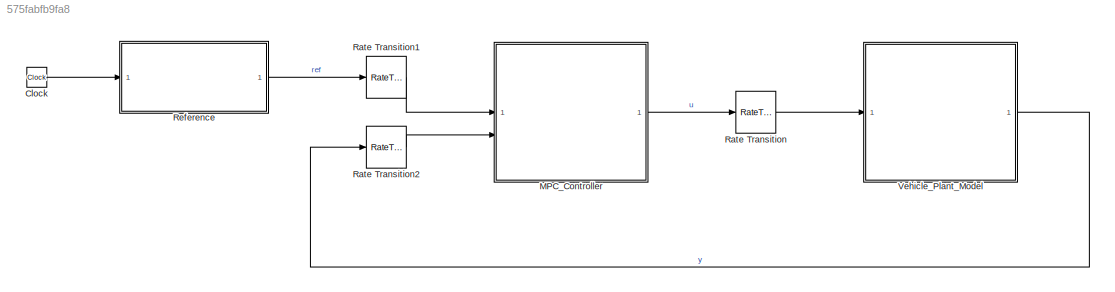
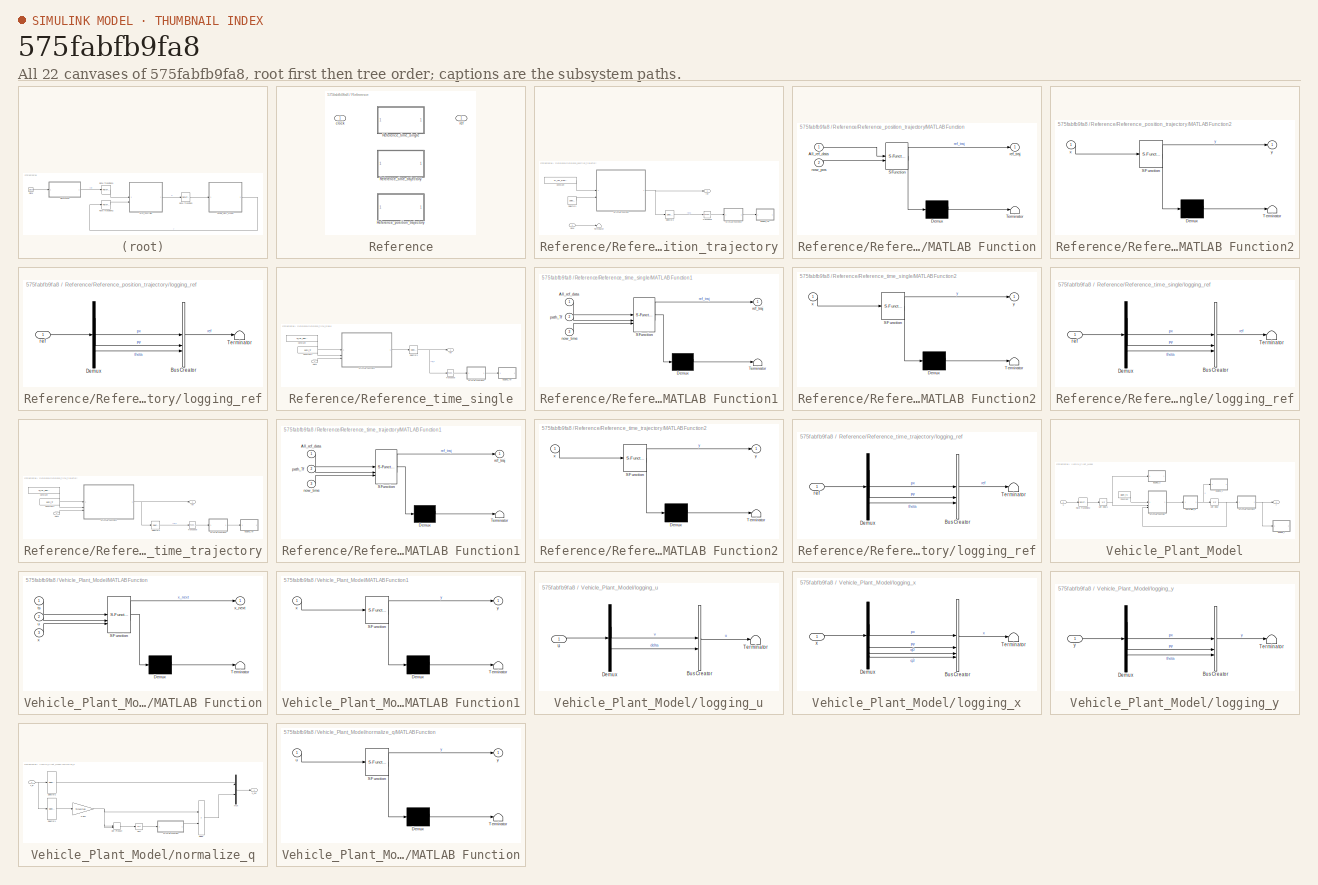
[diagram: thumbnail index - all 22 canvases of the model, root first then tree order]
MODEL slx_575fabfb9fa8
KIND model
BLOCK [Clock] Clock
  Decimation = 1
BLOCK [ModelReference] MPC_Controller
  ModelNameDialog = Parking_NMPC_Controller
  ModelReferenceVersion = 9.0
BLOCK [RateTransition] Rate Transition
BLOCK [RateTransition] Rate Transition1
  OutPortSampleTime = TimeStep
BLOCK [RateTransition] Rate Transition2
  OutPortSampleTime = TimeStep
BLOCK [SubSystem] Reference
  Variant = on
  VariantControl = Choice
BLOCK [SubSystem] Reference/Reference_position_trajectory
BLOCK [Constant] Reference/Reference_position_trajectory/Constant
  Value = nl_ref_signal_MAT
  VectorParams1D = off
BLOCK [SubSystem] Reference/Reference_position_trajectory/MATLAB Function
  ErrorFcn = Stateflow.Translate.translate
  PermitHierarchicalResolution = ExplicitOnly
  SFBlockType = MATLAB Function
  TreatAsAtomicUnit = on
BLOCK [Demux] Reference/Reference_position_trajectory/MATLAB Function/ Demux 
  Outputs = 1
BLOCK [S-Function] Reference/Reference_position_trajectory/MATLAB Function/ SFunction 
  EnableBusSupport = off
  FunctionName = sf_sfun
  Parameters = NLMPC_Hp
  PortCounts = [2 2]
  SFcnIsStateOwnerBlock = off
  SFunctionDeploymentMode = off
  Tag = Stateflow S-Function 10
BLOCK [Terminator] Reference/Reference_position_trajectory/MATLAB Function/ Terminator 
BLOCK [Inport] Reference/Reference_position_trajectory/MATLAB Function/All_ref_data
BLOCK [Inport] Reference/Reference_position_trajectory/MATLAB Function/now_pos
  Port = 2
BLOCK [Outport] Reference/Reference_position_trajectory/MATLAB Function/ref_traj
BLOCK [SubSystem] Reference/Reference_position_trajectory/MATLAB Function2
  ErrorFcn = Stateflow.Translate.translate
  PermitHierarchicalResolution = ExplicitOnly
  SFBlockType = MATLAB Function
  TreatAsAtomicUnit = on
BLOCK [Demux] Reference/Reference_position_trajectory/MATLAB Function2/ Demux 
  Outputs = 1
BLOCK [S-Function] Reference/Reference_position_trajectory/MATLAB Function2/ SFunction 
  EnableBusSupport = off
  FunctionName = sf_sfun
  PortCounts = [1 2]
  SFcnIsStateOwnerBlock = off
  SFunctionDeploymentMode = off
  Tag = Stateflow S-Function 12
BLOCK [Terminator] Reference/Reference_position_trajectory/MATLAB Function2/ Terminator 
BLOCK [Inport] Reference/Reference_position_trajectory/MATLAB Function2/x
BLOCK [Outport] Reference/Reference_position_trajectory/MATLAB Function2/y
BLOCK [Selector] Reference/Reference_position_trajectory/Selector1
  IndexOptions = Index vector (dialog)
  Indices = [1 2]
  InputPortWidth = 3
  OutputSizes = 1
BLOCK [Selector] Reference/Reference_position_trajectory/Selector2
  IndexOptions = Index vector (dialog),Select all
  Indices = [1],1
  InputPortWidth = 3
  NumberOfDimensions = 2
  OutputSizes = 1,1
BLOCK [Terminator] Reference/Reference_position_trajectory/Terminator
BLOCK [Math] Reference/Reference_position_trajectory/Transpose
  Operator = transpose
BLOCK [Inport] Reference/Reference_position_trajectory/clock
BLOCK [SubSystem] Reference/Reference_position_trajectory/logging_ref
BLOCK [BusCreator] Reference/Reference_position_trajectory/logging_ref/Bus Creator
  DisplayOption = bar
  InheritFromInputs = on
  Inputs = 3
BLOCK [Demux] Reference/Reference_position_trajectory/logging_ref/Demux
  Outputs = 3
BLOCK [Terminator] Reference/Reference_position_trajectory/logging_ref/Terminator
BLOCK [Inport] Reference/Reference_position_trajectory/logging_ref/ref
BLOCK [Outport] Reference/Reference_position_trajectory/ref
BLOCK [SubSystem] Reference/Reference_time_single
  VariantControl = ref_VALIANT_TS
BLOCK [Constant] Reference/Reference_time_single/Constant
  Value = nl_ref_signal_MAT
  VectorParams1D = off
BLOCK [Constant] Reference/Reference_time_single/Constant1
  Value = path_Tf
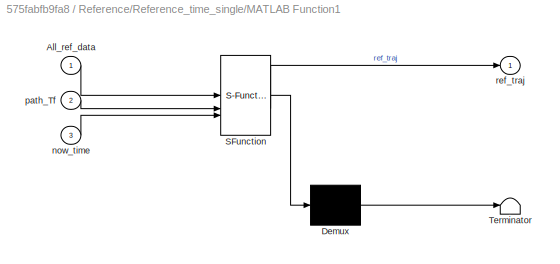
BLOCK [SubSystem] Reference/Reference_time_single/MATLAB Function1
  ErrorFcn = Stateflow.Translate.translate
  PermitHierarchicalResolution = ExplicitOnly
  SFBlockType = MATLAB Function
  TreatAsAtomicUnit = on
BLOCK [Demux] Reference/Reference_time_single/MATLAB Function1/ Demux 
  Outputs = 1
BLOCK [S-Function] Reference/Reference_time_single/MATLAB Function1/ SFunction 
  EnableBusSupport = off
  FunctionName = sf_sfun
  Parameters = NLMPC_Hp
  PortCounts = [3 2]
  SFcnIsStateOwnerBlock = off
  SFunctionDeploymentMode = off
  Tag = Stateflow S-Function 4
BLOCK [Terminator] Reference/Reference_time_single/MATLAB Function1/ Terminator 
BLOCK [Inport] Reference/Reference_time_single/MATLAB Function1/All_ref_data
BLOCK [Inport] Reference/Reference_time_single/MATLAB Function1/now_time
  Port = 3
BLOCK [Inport] Reference/Reference_time_single/MATLAB Function1/path_Tf
  Port = 2
BLOCK [Outport] Reference/Reference_time_single/MATLAB Function1/ref_traj
BLOCK [SubSystem] Reference/Reference_time_single/MATLAB Function2
  ErrorFcn = Stateflow.Translate.translate
  PermitHierarchicalResolution = ExplicitOnly
  SFBlockType = MATLAB Function
  TreatAsAtomicUnit = on
BLOCK [Demux] Reference/Reference_time_single/MATLAB Function2/ Demux 
  Outputs = 1
BLOCK [S-Function] Reference/Reference_time_single/MATLAB Function2/ SFunction 
  EnableBusSupport = off
  FunctionName = sf_sfun
  PortCounts = [1 2]
  SFcnIsStateOwnerBlock = off
  SFunctionDeploymentMode = off
  Tag = Stateflow S-Function 5
BLOCK [Terminator] Reference/Reference_time_single/MATLAB Function2/ Terminator 
BLOCK [Inport] Reference/Reference_time_single/MATLAB Function2/x
BLOCK [Outport] Reference/Reference_time_single/MATLAB Function2/y
BLOCK [Selector] Reference/Reference_time_single/Selector2
  IndexOptions = Index vector (dialog),Select all
  Indices = [1],1
  InputPortWidth = 3
  NumberOfDimensions = 2
  OutputSizes = 1,1
BLOCK [Math] Reference/Reference_time_single/Transpose
  Operator = transpose
BLOCK [Inport] Reference/Reference_time_single/clock
BLOCK [SubSystem] Reference/Reference_time_single/logging_ref
BLOCK [BusCreator] Reference/Reference_time_single/logging_ref/Bus Creator
  DisplayOption = bar
  InheritFromInputs = on
  Inputs = 3
BLOCK [Demux] Reference/Reference_time_single/logging_ref/Demux
  Outputs = 3
BLOCK [Terminator] Reference/Reference_time_single/logging_ref/Terminator
BLOCK [Inport] Reference/Reference_time_single/logging_ref/ref
BLOCK [Outport] Reference/Reference_time_single/ref
BLOCK [SubSystem] Reference/Reference_time_trajectory
  VariantControl = ref_VALIANT_TT
BLOCK [Constant] Reference/Reference_time_trajectory/Constant
  Value = nl_ref_signal_MAT
  VectorParams1D = off
BLOCK [Constant] Reference/Reference_time_trajectory/Constant1
  Value = path_Tf
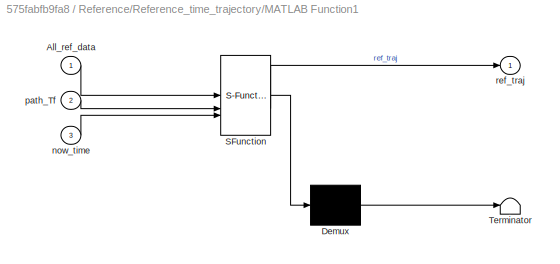
BLOCK [SubSystem] Reference/Reference_time_trajectory/MATLAB Function1
  ErrorFcn = Stateflow.Translate.translate
  PermitHierarchicalResolution = ExplicitOnly
  SFBlockType = MATLAB Function
  TreatAsAtomicUnit = on
BLOCK [Demux] Reference/Reference_time_trajectory/MATLAB Function1/ Demux 
  Outputs = 1
BLOCK [S-Function] Reference/Reference_time_trajectory/MATLAB Function1/ SFunction 
  EnableBusSupport = off
  FunctionName = sf_sfun
  Parameters = NLMPC_Hp
  PortCounts = [3 2]
  SFcnIsStateOwnerBlock = off
  SFunctionDeploymentMode = off
  Tag = Stateflow S-Function 8
BLOCK [Terminator] Reference/Reference_time_trajectory/MATLAB Function1/ Terminator 
BLOCK [Inport] Reference/Reference_time_trajectory/MATLAB Function1/All_ref_data
BLOCK [Inport] Reference/Reference_time_trajectory/MATLAB Function1/now_time
  Port = 3
BLOCK [Inport] Reference/Reference_time_trajectory/MATLAB Function1/path_Tf
  Port = 2
BLOCK [Outport] Reference/Reference_time_trajectory/MATLAB Function1/ref_traj
BLOCK [SubSystem] Reference/Reference_time_trajectory/MATLAB Function2
  ErrorFcn = Stateflow.Translate.translate
  PermitHierarchicalResolution = ExplicitOnly
  SFBlockType = MATLAB Function
  TreatAsAtomicUnit = on
BLOCK [Demux] Reference/Reference_time_trajectory/MATLAB Function2/ Demux 
  Outputs = 1
BLOCK [S-Function] Reference/Reference_time_trajectory/MATLAB Function2/ SFunction 
  EnableBusSupport = off
  FunctionName = sf_sfun
  PortCounts = [1 2]
  SFcnIsStateOwnerBlock = off
  SFunctionDeploymentMode = off
  Tag = Stateflow S-Function 9
BLOCK [Terminator] Reference/Reference_time_trajectory/MATLAB Function2/ Terminator 
BLOCK [Inport] Reference/Reference_time_trajectory/MATLAB Function2/x
BLOCK [Outport] Reference/Reference_time_trajectory/MATLAB Function2/y
BLOCK [Selector] Reference/Reference_time_trajectory/Selector2
  IndexOptions = Index vector (dialog),Select all
  Indices = [1],1
  InputPortWidth = 3
  NumberOfDimensions = 2
  OutputSizes = 1,1
BLOCK [Math] Reference/Reference_time_trajectory/Transpose
  Operator = transpose
BLOCK [Inport] Reference/Reference_time_trajectory/clock
BLOCK [SubSystem] Reference/Reference_time_trajectory/logging_ref
BLOCK [BusCreator] Reference/Reference_time_trajectory/logging_ref/Bus Creator
  DisplayOption = bar
  InheritFromInputs = on
  Inputs = 3
BLOCK [Demux] Reference/Reference_time_trajectory/logging_ref/Demux
  Outputs = 3
BLOCK [Terminator] Reference/Reference_time_trajectory/logging_ref/Terminator
BLOCK [Inport] Reference/Reference_time_trajectory/logging_ref/ref
BLOCK [Outport] Reference/Reference_time_trajectory/ref
BLOCK [Inport] Reference/clock
BLOCK [Outport] Reference/ref
BLOCK [SubSystem] Vehicle_Plant_Model
BLOCK [Constant] Vehicle_Plant_Model/Constant
  Value = plant_ts
BLOCK [SubSystem] Vehicle_Plant_Model/MATLAB Function
  ErrorFcn = Stateflow.Translate.translate
  PermitHierarchicalResolution = ExplicitOnly
  SFBlockType = MATLAB Function
  TreatAsAtomicUnit = on
BLOCK [Demux] Vehicle_Plant_Model/MATLAB Function/ Demux 
  Outputs = 1
BLOCK [S-Function] Vehicle_Plant_Model/MATLAB Function/ SFunction 
  EnableBusSupport = off
  FunctionName = sf_sfun
  PortCounts = [3 2]
  SFcnIsStateOwnerBlock = off
  SFunctionDeploymentMode = off
  Tag = Stateflow S-Function 1
BLOCK [Terminator] Vehicle_Plant_Model/MATLAB Function/ Terminator 
BLOCK [Inport] Vehicle_Plant_Model/MATLAB Function/ts
BLOCK [Inport] Vehicle_Plant_Model/MATLAB Function/u
  Port = 2
BLOCK [Inport] Vehicle_Plant_Model/MATLAB Function/x
  Port = 3
BLOCK [Outport] Vehicle_Plant_Model/MATLAB Function/x_next
BLOCK [SubSystem] Vehicle_Plant_Model/MATLAB Function1
  ErrorFcn = Stateflow.Translate.translate
  PermitHierarchicalResolution = ExplicitOnly
  SFBlockType = MATLAB Function
  TreatAsAtomicUnit = on
BLOCK [Demux] Vehicle_Plant_Model/MATLAB Function1/ Demux 
  Outputs = 1
BLOCK [S-Function] Vehicle_Plant_Model/MATLAB Function1/ SFunction 
  EnableBusSupport = off
  FunctionName = sf_sfun
  PortCounts = [1 2]
  SFcnIsStateOwnerBlock = off
  SFunctionDeploymentMode = off
  Tag = Stateflow S-Function 2
BLOCK [Terminator] Vehicle_Plant_Model/MATLAB Function1/ Terminator 
BLOCK [Inport] Vehicle_Plant_Model/MATLAB Function1/x
BLOCK [Outport] Vehicle_Plant_Model/MATLAB Function1/y
BLOCK [RateTransition] Vehicle_Plant_Model/Rate Transition2
  OutPortSampleTime = plant_ts
BLOCK [UnitDelay] Vehicle_Plant_Model/Unit Delay
  HasFrameUpgradeWarning = on
  InitialCondition = x0
  SampleTime = -1
BLOCK [UnitDelay] Vehicle_Plant_Model/Unit Delay1
  HasFrameUpgradeWarning = on
  InitialCondition = u0
  SampleTime = -1
BLOCK [SubSystem] Vehicle_Plant_Model/logging_u
BLOCK [BusCreator] Vehicle_Plant_Model/logging_u/Bus Creator
  DisplayOption = bar
  InheritFromInputs = on
  Inputs = 2
BLOCK [Demux] Vehicle_Plant_Model/logging_u/Demux
  Outputs = 2
BLOCK [Terminator] Vehicle_Plant_Model/logging_u/Terminator
BLOCK [Inport] Vehicle_Plant_Model/logging_u/u
BLOCK [SubSystem] Vehicle_Plant_Model/logging_x
BLOCK [BusCreator] Vehicle_Plant_Model/logging_x/Bus Creator
  DisplayOption = bar
  InheritFromInputs = on
  Inputs = 4
BLOCK [Demux] Vehicle_Plant_Model/logging_x/Demux
BLOCK [Terminator] Vehicle_Plant_Model/logging_x/Terminator
BLOCK [Inport] Vehicle_Plant_Model/logging_x/x
BLOCK [SubSystem] Vehicle_Plant_Model/logging_y
BLOCK [BusCreator] Vehicle_Plant_Model/logging_y/Bus Creator
  DisplayOption = bar
  InheritFromInputs = on
  Inputs = 3
BLOCK [Demux] Vehicle_Plant_Model/logging_y/Demux
  Outputs = 3
BLOCK [Terminator] Vehicle_Plant_Model/logging_y/Terminator
BLOCK [Inport] Vehicle_Plant_Model/logging_y/y
BLOCK [SubSystem] Vehicle_Plant_Model/normalize_q
BLOCK [Product] Vehicle_Plant_Model/normalize_q/Divide
  Inputs = */
BLOCK [DotProduct] Vehicle_Plant_Model/normalize_q/Dot Product
  OutDataTypeStr = Inherit: Inherit via internal rule
BLOCK [Gain] Vehicle_Plant_Model/normalize_q/Gain1
  Gain = TimeStep
BLOCK [SubSystem] Vehicle_Plant_Model/normalize_q/MATLAB Function
  ErrorFcn = Stateflow.Translate.translate
  PermitHierarchicalResolution = ExplicitOnly
  SFBlockType = MATLAB Function
  TreatAsAtomicUnit = on
BLOCK [Demux] Vehicle_Plant_Model/normalize_q/MATLAB Function/ Demux 
  Outputs = 1
BLOCK [S-Function] Vehicle_Plant_Model/normalize_q/MATLAB Function/ SFunction 
  EnableBusSupport = off
  FunctionName = sf_sfun
  Parameters = div_min_MPC
  PortCounts = [1 2]
  SFcnIsStateOwnerBlock = off
  SFunctionDeploymentMode = off
  Tag = Stateflow S-Function 6
BLOCK [Terminator] Vehicle_Plant_Model/normalize_q/MATLAB Function/ Terminator 
BLOCK [Inport] Vehicle_Plant_Model/normalize_q/MATLAB Function/u
BLOCK [Outport] Vehicle_Plant_Model/normalize_q/MATLAB Function/y
BLOCK [Mux] Vehicle_Plant_Model/normalize_q/Mux
  DisplayOption = bar
  Inputs = 2
BLOCK [Selector] Vehicle_Plant_Model/normalize_q/Selector1
  IndexOptions = Index vector (dialog)
  Indices = [3 4]
  InputPortWidth = 4
  OutputSizes = 1
BLOCK [Selector] Vehicle_Plant_Model/normalize_q/Selector2
  IndexOptions = Index vector (dialog)
  Indices = [1 2]
  InputPortWidth = 4
  OutputSizes = 1
BLOCK [Sqrt] Vehicle_Plant_Model/normalize_q/Sqrt
BLOCK [Inport] Vehicle_Plant_Model/normalize_q/x_in
BLOCK [Outport] Vehicle_Plant_Model/normalize_q/x_out
BLOCK [Inport] Vehicle_Plant_Model/u
BLOCK [Outport] Vehicle_Plant_Model/y
LINE Clock:1 -> Reference:1
LINE MPC_Controller:1 -> Rate Transition:1
LINE Rate Transition1:1 -> MPC_Controller:1
LINE Rate Transition2:1 -> MPC_Controller:2
LINE Rate Transition:1 -> Vehicle_Plant_Model:1
LINE Reference/Reference_position_trajectory/Constant:1 -> Reference/Reference_position_trajectory/MATLAB Function:1
LINE Reference/Reference_position_trajectory/MATLAB Function2:1 -> Reference/Reference_position_trajectory/logging_ref:1
NET Reference/Reference_position_trajectory/MATLAB Function:1 -> Reference/Reference_position_trajectory/Selector2:1, Reference/Reference_position_trajectory/ref:1
LINE Reference/Reference_position_trajectory/Selector1:1 -> Reference/Reference_position_trajectory/MATLAB Function:2
LINE Reference/Reference_position_trajectory/Selector2:1 -> Reference/Reference_position_trajectory/Transpose:1
LINE Reference/Reference_position_trajectory/Transpose:1 -> Reference/Reference_position_trajectory/MATLAB Function2:1
LINE Reference/Reference_position_trajectory/clock:1 -> Reference/Reference_position_trajectory/Terminator:1
LINE Reference/Reference_position_trajectory/logging_ref/Bus Creator:1 -> Reference/Reference_position_trajectory/logging_ref/Terminator:1
LINE Reference/Reference_position_trajectory/logging_ref/Demux:1 -> Reference/Reference_position_trajectory/logging_ref/Bus Creator:1
LINE Reference/Reference_position_trajectory/logging_ref/Demux:2 -> Reference/Reference_position_trajectory/logging_ref/Bus Creator:2
LINE Reference/Reference_position_trajectory/logging_ref/Demux:3 -> Reference/Reference_position_trajectory/logging_ref/Bus Creator:3
LINE Reference/Reference_position_trajectory/logging_ref/ref:1 -> Reference/Reference_position_trajectory/logging_ref/Demux:1
LINE Reference/Reference_time_single/Constant1:1 -> Reference/Reference_time_single/MATLAB Function1:2
LINE Reference/Reference_time_single/Constant:1 -> Reference/Reference_time_single/MATLAB Function1:1
LINE Reference/Reference_time_single/MATLAB Function1:1 -> Reference/Reference_time_single/Selector2:1
LINE Reference/Reference_time_single/MATLAB Function2:1 -> Reference/Reference_time_single/logging_ref:1
NET Reference/Reference_time_single/Selector2:1 -> Reference/Reference_time_single/Transpose:1, Reference/Reference_time_single/ref:1
LINE Reference/Reference_time_single/Transpose:1 -> Reference/Reference_time_single/MATLAB Function2:1
LINE Reference/Reference_time_single/clock:1 -> Reference/Reference_time_single/MATLAB Function1:3
LINE Reference/Reference_time_single/logging_ref/Bus Creator:1 -> Reference/Reference_time_single/logging_ref/Terminator:1
LINE Reference/Reference_time_single/logging_ref/Demux:1 -> Reference/Reference_time_single/logging_ref/Bus Creator:1
LINE Reference/Reference_time_single/logging_ref/Demux:2 -> Reference/Reference_time_single/logging_ref/Bus Creator:2
LINE Reference/Reference_time_single/logging_ref/Demux:3 -> Reference/Reference_time_single/logging_ref/Bus Creator:3
LINE Reference/Reference_time_single/logging_ref/ref:1 -> Reference/Reference_time_single/logging_ref/Demux:1
LINE Reference/Reference_time_trajectory/Constant1:1 -> Reference/Reference_time_trajectory/MATLAB Function1:2
LINE Reference/Reference_time_trajectory/Constant:1 -> Reference/Reference_time_trajectory/MATLAB Function1:1
NET Reference/Reference_time_trajectory/MATLAB Function1:1 -> Reference/Reference_time_trajectory/Selector2:1, Reference/Reference_time_trajectory/ref:1
LINE Reference/Reference_time_trajectory/MATLAB Function2:1 -> Reference/Reference_time_trajectory/logging_ref:1
LINE Reference/Reference_time_trajectory/Selector2:1 -> Reference/Reference_time_trajectory/Transpose:1
LINE Reference/Reference_time_trajectory/Transpose:1 -> Reference/Reference_time_trajectory/MATLAB Function2:1
LINE Reference/Reference_time_trajectory/clock:1 -> Reference/Reference_time_trajectory/MATLAB Function1:3
LINE Reference/Reference_time_trajectory/logging_ref/Bus Creator:1 -> Reference/Reference_time_trajectory/logging_ref/Terminator:1
LINE Reference/Reference_time_trajectory/logging_ref/Demux:1 -> Reference/Reference_time_trajectory/logging_ref/Bus Creator:1
LINE Reference/Reference_time_trajectory/logging_ref/Demux:2 -> Reference/Reference_time_trajectory/logging_ref/Bus Creator:2
LINE Reference/Reference_time_trajectory/logging_ref/Demux:3 -> Reference/Reference_time_trajectory/logging_ref/Bus Creator:3
LINE Reference/Reference_time_trajectory/logging_ref/ref:1 -> Reference/Reference_time_trajectory/logging_ref/Demux:1
LINE Reference:1 -> Rate Transition1:1
LINE Vehicle_Plant_Model/Constant:1 -> Vehicle_Plant_Model/MATLAB Function:1
NET Vehicle_Plant_Model/MATLAB Function1:1 -> Vehicle_Plant_Model/logging_y:1, Vehicle_Plant_Model/y:1
LINE Vehicle_Plant_Model/MATLAB Function:1 -> Vehicle_Plant_Model/normalize_q:1
LINE Vehicle_Plant_Model/Rate Transition2:1 -> Vehicle_Plant_Model/Unit Delay1:1
NET Vehicle_Plant_Model/Unit Delay1:1 -> Vehicle_Plant_Model/MATLAB Function:2, Vehicle_Plant_Model/logging_u:1
NET Vehicle_Plant_Model/Unit Delay:1 -> Vehicle_Plant_Model/MATLAB Function1:1, Vehicle_Plant_Model/MATLAB Function:3
LINE Vehicle_Plant_Model/logging_u/Bus Creator:1 -> Vehicle_Plant_Model/logging_u/Terminator:1
LINE Vehicle_Plant_Model/logging_u/Demux:1 -> Vehicle_Plant_Model/logging_u/Bus Creator:1
LINE Vehicle_Plant_Model/logging_u/Demux:2 -> Vehicle_Plant_Model/logging_u/Bus Creator:2
LINE Vehicle_Plant_Model/logging_u/u:1 -> Vehicle_Plant_Model/logging_u/Demux:1
LINE Vehicle_Plant_Model/logging_x/Bus Creator:1 -> Vehicle_Plant_Model/logging_x/Terminator:1
LINE Vehicle_Plant_Model/logging_x/Demux:1 -> Vehicle_Plant_Model/logging_x/Bus Creator:1
LINE Vehicle_Plant_Model/logging_x/Demux:2 -> Vehicle_Plant_Model/logging_x/Bus Creator:2
LINE Vehicle_Plant_Model/logging_x/Demux:3 -> Vehicle_Plant_Model/logging_x/Bus Creator:3
LINE Vehicle_Plant_Model/logging_x/Demux:4 -> Vehicle_Plant_Model/logging_x/Bus Creator:4
LINE Vehicle_Plant_Model/logging_x/x:1 -> Vehicle_Plant_Model/logging_x/Demux:1
LINE Vehicle_Plant_Model/logging_y/Bus Creator:1 -> Vehicle_Plant_Model/logging_y/Terminator:1
LINE Vehicle_Plant_Model/logging_y/Demux:1 -> Vehicle_Plant_Model/logging_y/Bus Creator:1
LINE Vehicle_Plant_Model/logging_y/Demux:2 -> Vehicle_Plant_Model/logging_y/Bus Creator:2
LINE Vehicle_Plant_Model/logging_y/Demux:3 -> Vehicle_Plant_Model/logging_y/Bus Creator:3
LINE Vehicle_Plant_Model/logging_y/y:1 -> Vehicle_Plant_Model/logging_y/Demux:1
LINE Vehicle_Plant_Model/normalize_q/Divide:1 -> Vehicle_Plant_Model/normalize_q/Mux:2
LINE Vehicle_Plant_Model/normalize_q/Dot Product:1 -> Vehicle_Plant_Model/normalize_q/Sqrt:1
NET Vehicle_Plant_Model/normalize_q/Gain1:1 -> Vehicle_Plant_Model/normalize_q/Divide:1, Vehicle_Plant_Model/normalize_q/Dot Product:1, Vehicle_Plant_Model/normalize_q/Dot Product:2
LINE Vehicle_Plant_Model/normalize_q/MATLAB Function:1 -> Vehicle_Plant_Model/normalize_q/Divide:2
LINE Vehicle_Plant_Model/normalize_q/Mux:1 -> Vehicle_Plant_Model/normalize_q/x_out:1
LINE Vehicle_Plant_Model/normalize_q/Selector1:1 -> Vehicle_Plant_Model/normalize_q/Gain1:1
LINE Vehicle_Plant_Model/normalize_q/Selector2:1 -> Vehicle_Plant_Model/normalize_q/Mux:1
LINE Vehicle_Plant_Model/normalize_q/Sqrt:1 -> Vehicle_Plant_Model/normalize_q/MATLAB Function:1
NET Vehicle_Plant_Model/normalize_q/x_in:1 -> Vehicle_Plant_Model/normalize_q/Selector1:1, Vehicle_Plant_Model/normalize_q/Selector2:1
NET Vehicle_Plant_Model/normalize_q:1 -> Vehicle_Plant_Model/Unit Delay:1, Vehicle_Plant_Model/logging_x:1
LINE Vehicle_Plant_Model/u:1 -> Vehicle_Plant_Model/Rate Transition2:1
LINE Vehicle_Plant_Model:1 -> Rate Transition2:1
note: NET lines group one-source signal fan-out (src -> all destinations, sorted); 1:1 wires keep LINE
CHART Vehicle_Plant_Model/MATLAB Function states=1 transitions=1
  STATE_LABEL 'eML_blk_kernel()'
  STATE_LABEL 'SCRIPT:\nfunction x_next = state_fcn(ts, u, x)\n\n% パラメータ\nwb = 2.8;\n\n% 変数\nv     = u(1);\ndelta = u(2);\npx    = x(1);\npy    = x(2);\nq0    = x(3);\nq3    = x(4);\n\nx_next = calc_nonlinear_f(ts,delta,px,py,q0,q3,v,wb);\n\nend'
CHART Vehicle_Plant_Model/MATLAB Function1 states=1 transitions=1
  STATE_LABEL 'eML_blk_kernel()'
  STATE_LABEL 'SCRIPT:\nfunction y = output_fcn(x)\n\npx = x(1);\npy = x(2);\nq0 = x(3);\nq3 = x(4);\n\ny = calc_nonlinear_h(px,py,q0,q3);\n\nif (y(3) > pi)\n    y(3) = y(3) - 2 * pi;\nelseif (y(3) < -pi)\n    y(3) = y(3) + 2 * pi;\nelse\n    % Do Nothing\nend\n\nend'  <repeated x4 — deduplicated; at blocks: MATLAB Function1, MATLAB Function2>
CHART Reference/Reference_time_single/MATLAB Function1 states=1 transitions=1
  STATE_LABEL 'eML_blk_kernel()'
  STATE_LABEL 'SCRIPT:\nfunction ref_traj = create_reference_trajectory(All_ref_data, path_Tf, ...\n    now_time, NLMPC_Hp)\n%% 時刻に応じて与える参照軌道を進める\nmax_id = size(All_ref_data, 1);\npath_id = round(max_id * (now_time / path_Tf)) + 1;\n\n%% 見つけた指令値点から予測ホライズン分の指令値を出力する\nref_traj = zeros(NLMPC_Hp, 4);\n\nfor i = 1:NLMPC_Hp\n    ref_id = path_id + i - 1;\n    if (ref_id > max_id)\n        ref_traj(i, :) = All_ref_data(max_id, :);\n...<+75ch>'
CHART Reference/Reference_time_single/MATLAB Function2 states=1 transitions=1
  STATE_LABEL 'eML_blk_kernel()'
CHART Vehicle_Plant_Model/normalize_q/MATLAB Function states=1 transitions=1
  STATE_LABEL 'eML_blk_kernel()'
  STATE_LABEL 'SCRIPT:\nfunction y = avoid_zero_divide(u, div_min_MPC)\n\ny = avoid_zero_divide(u, div_min_MPC);\n\nend'
CHART Reference/Reference_time_trajectory/MATLAB Function1 states=1 transitions=1
  STATE_LABEL 'eML_blk_kernel()'
  STATE_LABEL 'SCRIPT:\nfunction ref_traj = create_reference_trajectory(All_ref_data, path_Tf, ...\n    now_time, NLMPC_Hp)\n%% 時刻に応じて与える参照軌道を進める\nmax_id = size(All_ref_data, 1);\npath_id = round(max_id * (now_time / path_Tf)) + 1;\n\n%% 見つけた指令値点から予測ホライズン分の指令値を出力する\nref_traj = zeros(NLMPC_Hp, 4);\n\nfor i = 1:NLMPC_Hp\n    ref_id = path_id + i - 1;\n    if (ref_id > max_id)\n        ref_traj(i, :) = All_ref_data(max_id, :);\n...<+75ch>'
CHART Reference/Reference_time_trajectory/MATLAB Function2 states=1 transitions=1
  STATE_LABEL 'eML_blk_kernel()'
CHART Reference/Reference_position_trajectory/MATLAB Function states=1 transitions=1
  STATE_LABEL 'eML_blk_kernel()'
  STATE_LABEL "SCRIPT:\nfunction ref_traj = create_reference_trajectory(All_ref_data, now_pos, NLMPC_Hp)\n%% 今の位置から最も近い軌道指令値点を探す\ndiff_MAT = zeros(size(All_ref_data(:, 1:2)));\nfor i = 1:size(All_ref_data, 1)\n    diff_MAT(i, :) = All_ref_data(i, 1:2) - now_pos';\nend\ndiff_vec = sum(diff_MAT .^ 2, 2);\n[~, diff_min_id] = min(diff_vec);\n\n%% 見つけた指令値点から予測ホライズン分の指令値を出力する\nref_traj = zeros(NLMPC_Hp, 4);\nmax_id = size(All_ref...<+215ch>"
CHART Reference/Reference_position_trajectory/MATLAB Function2 states=1 transitions=1
  STATE_LABEL 'eML_blk_kernel()'
CHART  states=0 transitions=0
CHART  states=0 transitions=0
CHART  states=0 transitions=0
CHART  states=0 transitions=0
CHART  states=0 transitions=0
CHART  states=0 transitions=0
CHART  states=0 transitions=0
CHART  states=0 transitions=0
CHART  states=0 transitions=0
